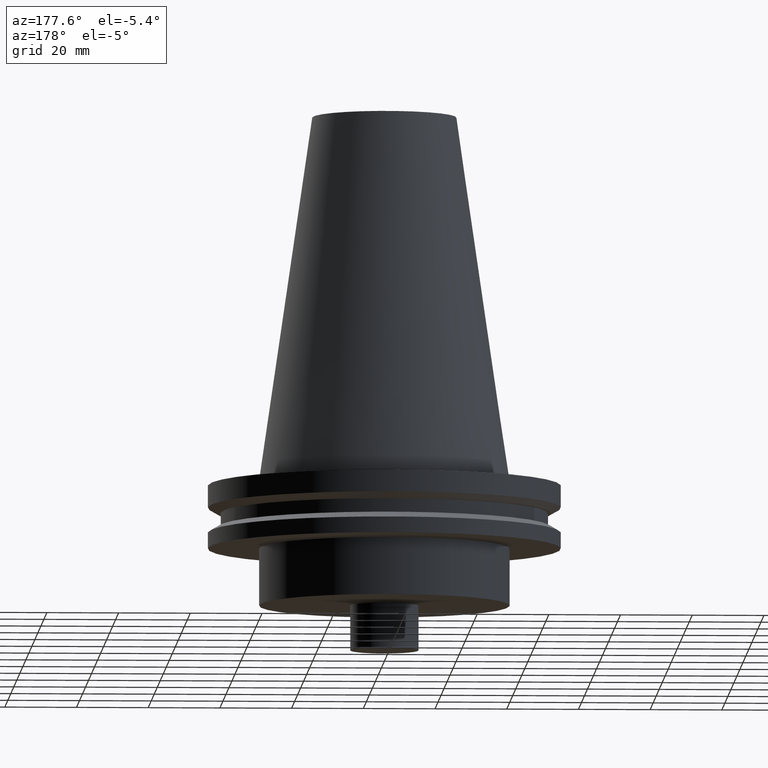
[diagram: clean part render]
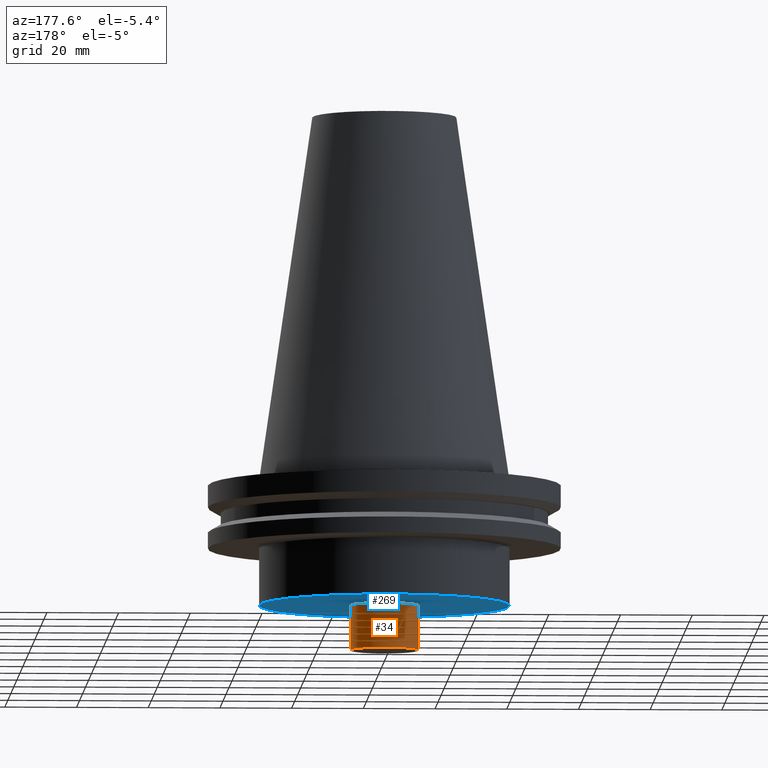
[diagram: same view with the hole feature highlighted: cylindrical wall and planar end face, labeled with their STEP entity ids]
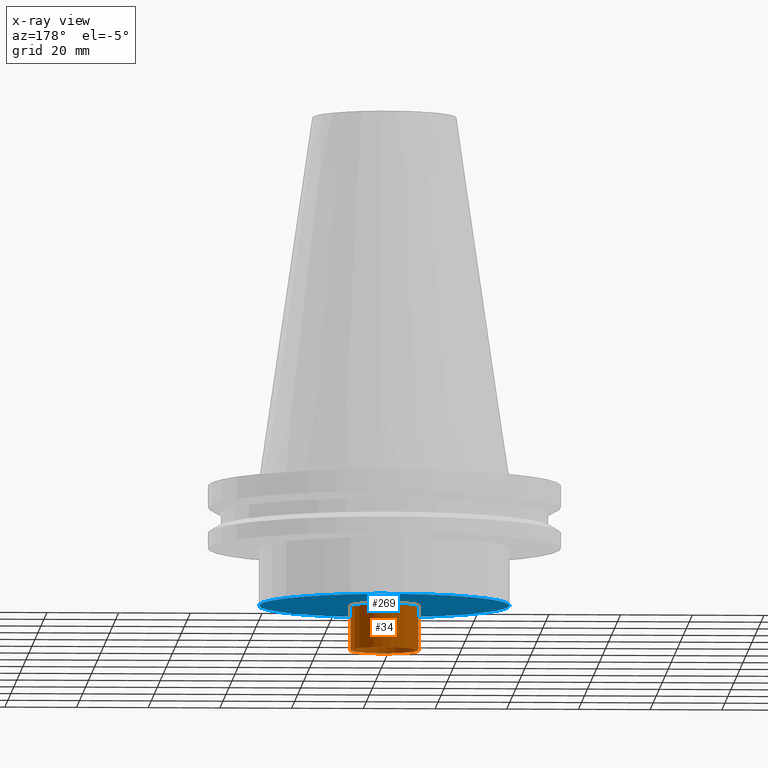
[diagram: x-ray of the same camera — body ghosted, the hole faces saturated]
A machine part, auxiliary view. The highlighted faces form one hole feature of diameter 19.05 mm: the cylindrical wall (entity #34, orange) and its adjacent planar end face (entity #269, blue) — they share a circular edge in the B-rep.
The next image is the same camera in x-ray (body ghosted, the hole faces saturated) — the bore reads through the body.
Wall:
#5 = CIRCLE ( 'NONE', #393, 9.524999999999998579 ) ;
#10 = CARTESIAN_POINT ( 'NONE',  ( 0.000000000000000000, 0.000000000000000000, -35.00000000000000000 ) ) ;
#34 = ADVANCED_FACE ( 'NONE', ( #102, #201 ), #313, .T. ) ;
#39 = EDGE_CURVE ( 'NONE', #309, #309, #109, .T. ) ;
#76 = DIRECTION ( 'NONE',  ( -0.000000000000000000, -0.000000000000000000, 1.000000000000000000 ) ) ;
#86 = DIRECTION ( 'NONE',  ( -0.000000000000000000, -0.000000000000000000, 1.000000000000000000 ) ) ;
#93 = CARTESIAN_POINT ( 'NONE',  ( 9.524999999999998579, 0.000000000000000000, -35.00000000000000000 ) ) ;
#94 = AXIS2_PLACEMENT_3D ( 'NONE', #10, #76, #134 ) ;
#102 = FACE_OUTER_BOUND ( 'NONE', #369, .T. ) ;
#109 = CIRCLE ( 'NONE', #94, 9.524999999999998579 ) ;
#120 = VERTEX_POINT ( 'NONE', #127 ) ;
#127 = CARTESIAN_POINT ( 'NONE',  ( 9.524999999999998579, 0.000000000000000000, -47.50000000000000711 ) ) ;
#134 = DIRECTION ( 'NONE',  ( 1.000000000000000000, 0.000000000000000000, 0.000000000000000000 ) ) ;
#163 = CARTESIAN_POINT ( 'NONE',  ( 0.000000000000000000, 0.000000000000000000, 0.000000000000000000 ) ) ;
#176 = ORIENTED_EDGE ( 'NONE', *, *, #39, .F. ) ;
#177 = DIRECTION ( 'NONE',  ( 1.000000000000000000, 0.000000000000000000, 0.000000000000000000 ) ) ;
#201 = FACE_OUTER_BOUND ( 'NONE', #249, .T. ) ;
#246 = EDGE_CURVE ( 'NONE', #120, #120, #5, .T. ) ;
#248 = DIRECTION ( 'NONE',  ( 1.000000000000000000, 0.000000000000000000, 0.000000000000000000 ) ) ;
#249 = EDGE_LOOP ( 'NONE', ( #292 ) ) ;
#262 = AXIS2_PLACEMENT_3D ( 'NONE', #163, #306, #248 ) ;
#292 = ORIENTED_EDGE ( 'NONE', *, *, #246, .T. ) ;
#306 = DIRECTION ( 'NONE',  ( -0.000000000000000000, -0.000000000000000000, 1.000000000000000000 ) ) ;
#309 = VERTEX_POINT ( 'NONE', #93 ) ;
#313 = CYLINDRICAL_SURFACE ( 'NONE', #262, 9.524999999999998579 ) ;
#320 = CARTESIAN_POINT ( 'NONE',  ( 0.000000000000000000, 0.000000000000000000, -47.50000000000000711 ) ) ;
#369 = EDGE_LOOP ( 'NONE', ( #176 ) ) ;
#393 = AXIS2_PLACEMENT_3D ( 'NONE', #320, #86, #177 ) ;
End face:
#10 = CARTESIAN_POINT ( 'NONE',  ( 0.000000000000000000, 0.000000000000000000, -35.00000000000000000 ) ) ;
#25 = DIRECTION ( 'NONE',  ( 0.000000000000000000, -0.000000000000000000, 1.000000000000000000 ) ) ;
#39 = EDGE_CURVE ( 'NONE', #309, #309, #109, .T. ) ;
#76 = DIRECTION ( 'NONE',  ( -0.000000000000000000, -0.000000000000000000, 1.000000000000000000 ) ) ;
#93 = CARTESIAN_POINT ( 'NONE',  ( 9.524999999999998579, 0.000000000000000000, -35.00000000000000000 ) ) ;
#94 = AXIS2_PLACEMENT_3D ( 'NONE', #10, #76, #134 ) ;
#96 = ORIENTED_EDGE ( 'NONE', *, *, #39, .T. ) ;
#109 = CIRCLE ( 'NONE', #94, 9.524999999999998579 ) ;
#116 = PLANE ( 'NONE',  #287 ) ;
#129 = DIRECTION ( 'NONE',  ( -0.000000000000000000, -0.000000000000000000, 1.000000000000000000 ) ) ;
#131 = EDGE_LOOP ( 'NONE', ( #96 ) ) ;
#134 = DIRECTION ( 'NONE',  ( 1.000000000000000000, 0.000000000000000000, 0.000000000000000000 ) ) ;
#183 = CIRCLE ( 'NONE', #231, 34.92499999999999716 ) ;
#202 = EDGE_LOOP ( 'NONE', ( #258 ) ) ;
#231 = AXIS2_PLACEMENT_3D ( 'NONE', #302, #129, #327 ) ;
#258 = ORIENTED_EDGE ( 'NONE', *, *, #367, .F. ) ;
#266 = FACE_OUTER_BOUND ( 'NONE', #202, .T. ) ;
#269 = ADVANCED_FACE ( 'NONE', ( #390, #266 ), #116, .F. ) ;
#270 = CARTESIAN_POINT ( 'NONE',  ( 34.92499999999999716, 0.000000000000000000, -35.00000000000000000 ) ) ;
#287 = AXIS2_PLACEMENT_3D ( 'NONE', #294, #25, #389 ) ;
#294 = CARTESIAN_POINT ( 'NONE',  ( 0.000000000000000000, 34.92499999999999716, -35.00000000000000000 ) ) ;
#302 = CARTESIAN_POINT ( 'NONE',  ( 0.000000000000000000, 0.000000000000000000, -35.00000000000000000 ) ) ;
#309 = VERTEX_POINT ( 'NONE', #93 ) ;
#327 = DIRECTION ( 'NONE',  ( 1.000000000000000000, 0.000000000000000000, 0.000000000000000000 ) ) ;
#364 = VERTEX_POINT ( 'NONE', #270 ) ;
#367 = EDGE_CURVE ( 'NONE', #364, #364, #183, .T. ) ;
#389 = DIRECTION ( 'NONE',  ( 1.000000000000000000, 0.000000000000000000, 0.000000000000000000 ) ) ;
#390 = FACE_BOUND ( 'NONE', #131, .T. ) ;